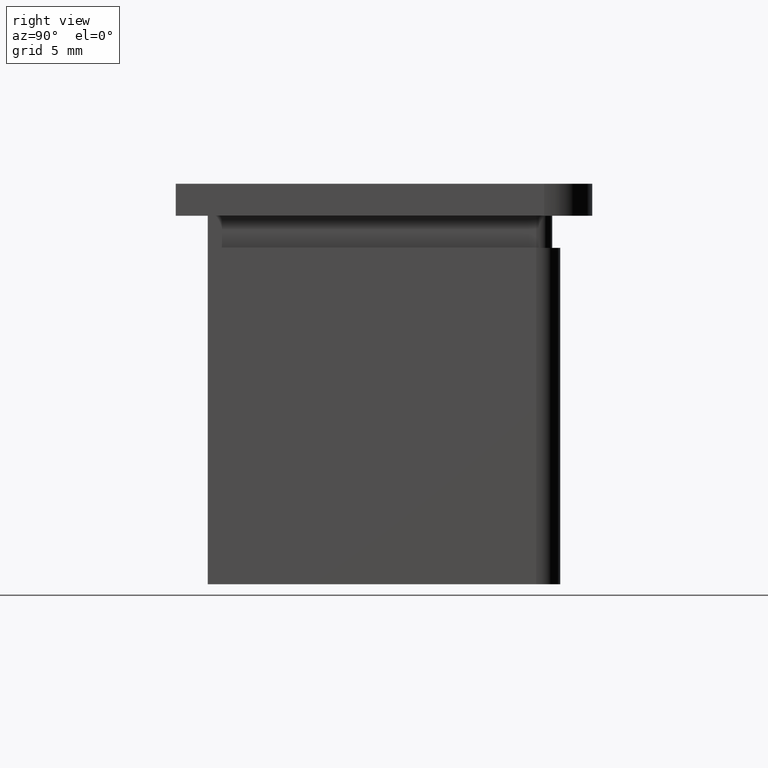
[diagram: clean part render]
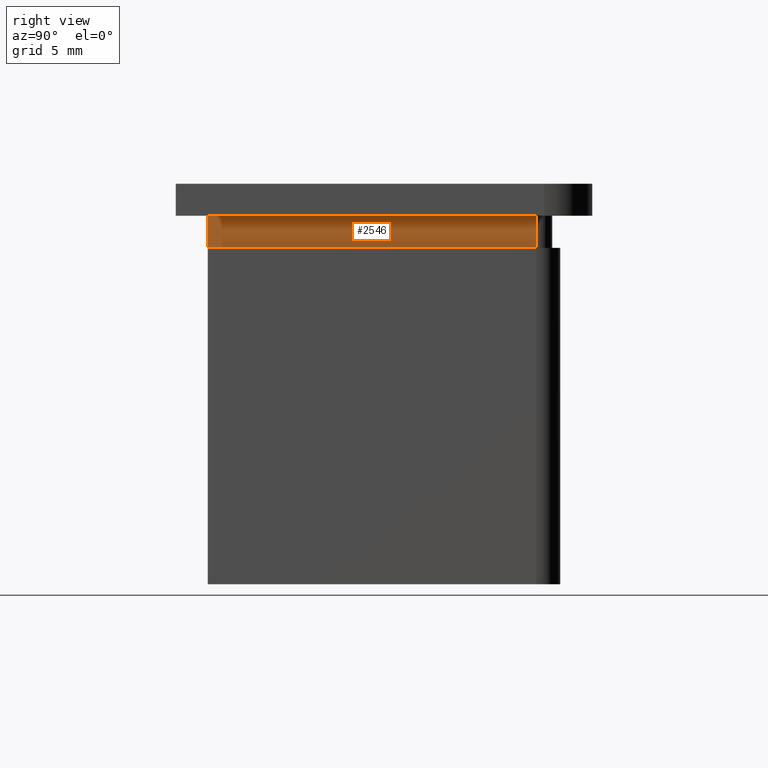
[diagram: same view with one face highlighted and labeled with its STEP entity id]
A machine part, right view. The second image highlights one B-rep face of the part: STEP entity #2546.
In plain terms, the highlighted planar face has unit normal (1, 0, -0).
Its self-contained STEP definition (entity closure, byte-faithful):
#158 = CARTESIAN_POINT ( 'NONE',  ( 11.50000000000000000, 9.499999999999989342, 0.000000000000000000 ) ) ;
#1156 = VECTOR ( 'NONE', #11326, 1000.000000000000000 ) ;
#1388 = EDGE_CURVE ( 'NONE', #1423, #12479, #16439, .T. ) ;
#1423 = VERTEX_POINT ( 'NONE', #5312 ) ;
#2436 = VECTOR ( 'NONE', #9064, 1000.000000000000000 ) ;
#2546 = ADVANCED_FACE ( 'NONE', ( #5991 ), #11052, .T. ) ;
#3019 = ORIENTED_EDGE ( 'NONE', *, *, #1388, .T. ) ;
#3840 = EDGE_CURVE ( 'NONE', #6417, #12479, #4989, .T. ) ;
#4252 = CARTESIAN_POINT ( 'NONE',  ( 11.50000000000000000, -11.00000000000000178, -2.000000000000000000 ) ) ;
#4640 = EDGE_LOOP ( 'NONE', ( #9113, #10297, #3019, #9024 ) ) ;
#4677 = DIRECTION ( 'NONE',  ( 1.000000000000000000, 0.000000000000000000, -0.000000000000000000 ) ) ;
#4689 = VERTEX_POINT ( 'NONE', #10867 ) ;
#4813 = CARTESIAN_POINT ( 'NONE',  ( 11.50000000000000000, -11.00000000000000178, 0.000000000000000000 ) ) ;
#4989 = LINE ( 'NONE', #4252, #11378 ) ;
#5312 = CARTESIAN_POINT ( 'NONE',  ( 11.50000000000000178, 9.499999999999989342, 0.000000000000000000 ) ) ;
#5400 = CARTESIAN_POINT ( 'NONE',  ( 11.50000000000000000, 9.499999999999989342, -2.000000000000000000 ) ) ;
#5991 = FACE_OUTER_BOUND ( 'NONE', #4640, .T. ) ;
#6205 = CARTESIAN_POINT ( 'NONE',  ( 11.50000000000000178, 9.499999999999989342, -2.000000000000000000 ) ) ;
#6417 = VERTEX_POINT ( 'NONE', #6423 ) ;
#6423 = CARTESIAN_POINT ( 'NONE',  ( 11.50000000000000000, -11.00000000000000178, -2.000000000000000000 ) ) ;
#7031 = DIRECTION ( 'NONE',  ( 0.000000000000000000, 0.000000000000000000, 1.000000000000000000 ) ) ;
#7337 = AXIS2_PLACEMENT_3D ( 'NONE', #12338, #4677, #12396 ) ;
#9024 = ORIENTED_EDGE ( 'NONE', *, *, #3840, .F. ) ;
#9064 = DIRECTION ( 'NONE',  ( 0.000000000000000000, -1.000000000000000000, 0.000000000000000000 ) ) ;
#9113 = ORIENTED_EDGE ( 'NONE', *, *, #12617, .F. ) ;
#10297 = ORIENTED_EDGE ( 'NONE', *, *, #15663, .T. ) ;
#10536 = DIRECTION ( 'NONE',  ( 0.000000000000000000, -1.000000000000000000, 0.000000000000000000 ) ) ;
#10867 = CARTESIAN_POINT ( 'NONE',  ( 11.50000000000000178, 9.499999999999989342, -2.000000000000000000 ) ) ;
#10966 = LINE ( 'NONE', #5400, #14173 ) ;
#11052 = PLANE ( 'NONE',  #7337 ) ;
#11326 = DIRECTION ( 'NONE',  ( 0.000000000000000000, 0.000000000000000000, 1.000000000000000000 ) ) ;
#11378 = VECTOR ( 'NONE', #7031, 1000.000000000000000 ) ;
#12338 = CARTESIAN_POINT ( 'NONE',  ( 11.50000000000000000, 9.499999999999989342, -2.000000000000000000 ) ) ;
#12396 = DIRECTION ( 'NONE',  ( -0.000000000000000000, 0.000000000000000000, -1.000000000000000000 ) ) ;
#12479 = VERTEX_POINT ( 'NONE', #4813 ) ;
#12617 = EDGE_CURVE ( 'NONE', #4689, #6417, #10966, .T. ) ;
#14173 = VECTOR ( 'NONE', #10536, 1000.000000000000000 ) ;
#15142 = LINE ( 'NONE', #6205, #1156 ) ;
#15663 = EDGE_CURVE ( 'NONE', #4689, #1423, #15142, .T. ) ;
#16439 = LINE ( 'NONE', #158, #2436 ) ;